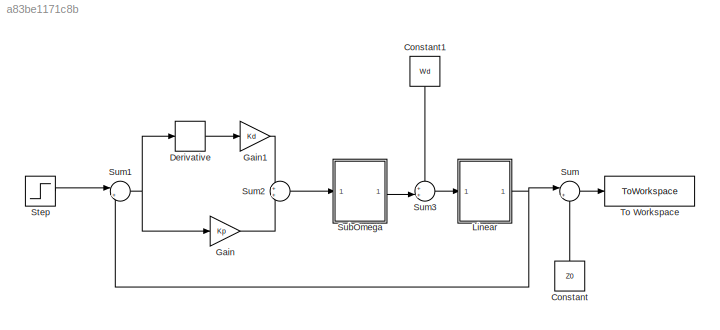
MODEL slx_a83be1171c8b
KIND model
CONFIG AbsTol = auto
CONFIG EnableMultiTasking = off
CONFIG FixedStep = 0.001
CONFIG MaxStep = auto
CONFIG MinStep = auto
CONFIG RelTol = 1e-3
CONFIG SampleTimeConstraint = Unconstrained
CONFIG SolverName = ode1
CONFIG StartTime = 0.0
CONFIG StopTime = StopTime
BLOCK [Constant] Constant
  NameLocation = right
  Value = Z0
BLOCK [Constant] Constant1
  NameLocation = left
  Value = Wd
BLOCK [Derivative] Derivative
BLOCK [Gain] Gain
  Gain = Kp
BLOCK [Gain] Gain1
  Gain = Kd
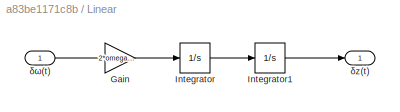
BLOCK [SubSystem] Linear
  Ports = [1, 1]
  RequestExecContextInheritance = off
BLOCK [Gain] Linear/Gain
  Gain = 2*omega_0*Kt/M
BLOCK [Integrator] Linear/Integrator
  Ports = [1, 1]
BLOCK [Integrator] Linear/Integrator1
  Ports = [1, 1]
BLOCK [Outport] Linear/δz(t)
BLOCK [Inport] Linear/δω(t)
BLOCK [Step] Step
  After = Zref
  SampleTime = 0
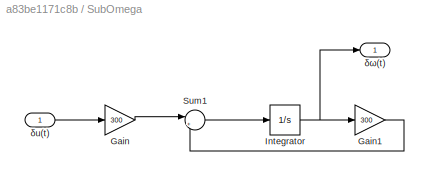
BLOCK [SubSystem] SubOmega
  Ports = [1, 1]
  RequestExecContextInheritance = off
BLOCK [Gain] SubOmega/Gain
  Gain = 300
BLOCK [Gain] SubOmega/Gain1
  Gain = 300
BLOCK [Integrator] SubOmega/Integrator
  Ports = [1, 1]
BLOCK [Sum] SubOmega/Sum1
  Inputs = |+-
  Ports = [2, 1]
BLOCK [Inport] SubOmega/δu(t)
BLOCK [Outport] SubOmega/δω(t)
BLOCK [Sum] Sum
  Inputs = |++
  Ports = [2, 1]
BLOCK [Sum] Sum1
  Inputs = |+-
  Ports = [2, 1]
BLOCK [Sum] Sum2
  Ports = [2, 1]
BLOCK [Sum] Sum3
  Inputs = ++|
  Ports = [2, 1]
BLOCK [ToWorkspace] To Workspace
  FixptAsFi = on
  MaxDataPoints = inf
  Ports = [1]
  SampleTime = -1
  SaveFormat = Structure With Time
  VariableName = dz
LINE Constant1:1 -> Sum3:1
LINE Constant:1 -> Sum:2
LINE Derivative:1 -> Gain1:1
LINE Gain1:1 -> Sum2:1
LINE Gain:1 -> Sum2:2
LINE Linear/Gain:1 -> Linear/Integrator:1
LINE Linear/Integrator1:1 -> Linear/δz(t):1
LINE Linear/Integrator:1 -> Linear/Integrator1:1
LINE Linear/δω(t):1 -> Linear/Gain:1
NET Linear:1 -> Sum1:2, Sum:1
LINE Step:1 -> Sum1:1
LINE SubOmega/Gain1:1 -> SubOmega/Sum1:2
LINE SubOmega/Gain:1 -> SubOmega/Sum1:1
NET SubOmega/Integrator:1 -> SubOmega/Gain1:1, SubOmega/δω(t):1
LINE SubOmega/Sum1:1 -> SubOmega/Integrator:1
LINE SubOmega/δu(t):1 -> SubOmega/Gain:1
LINE SubOmega:1 -> Sum3:2
NET Sum1:1 -> Derivative:1, Gain:1
LINE Sum2:1 -> SubOmega:1
LINE Sum3:1 -> Linear:1
LINE Sum:1 -> To Workspace:1
note: NET lines group one-source signal fan-out (src -> all destinations, sorted); 1:1 wires keep LINE
